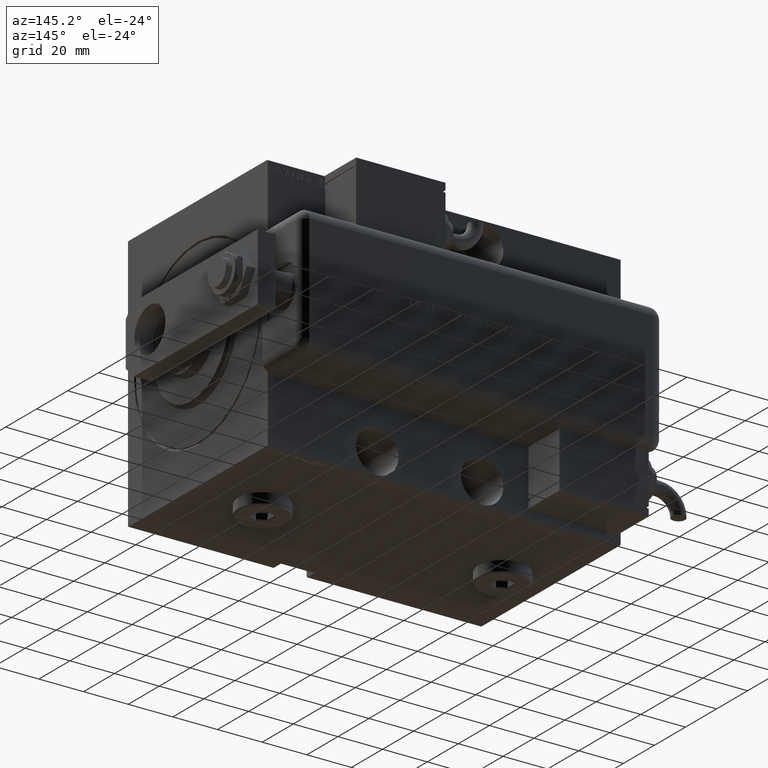
[diagram: clean part render]
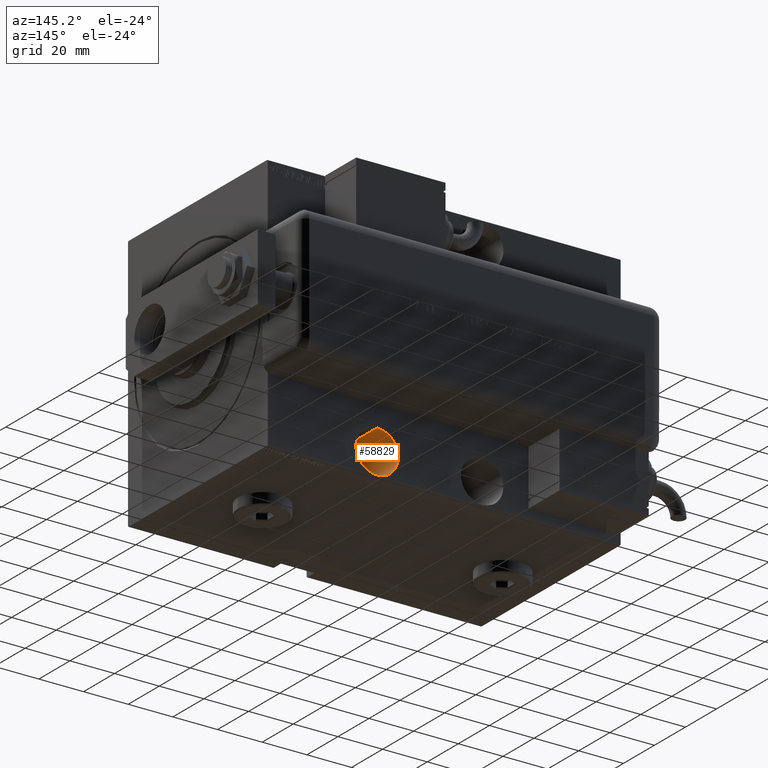
[diagram: same view with one face highlighted and labeled with its STEP entity id]
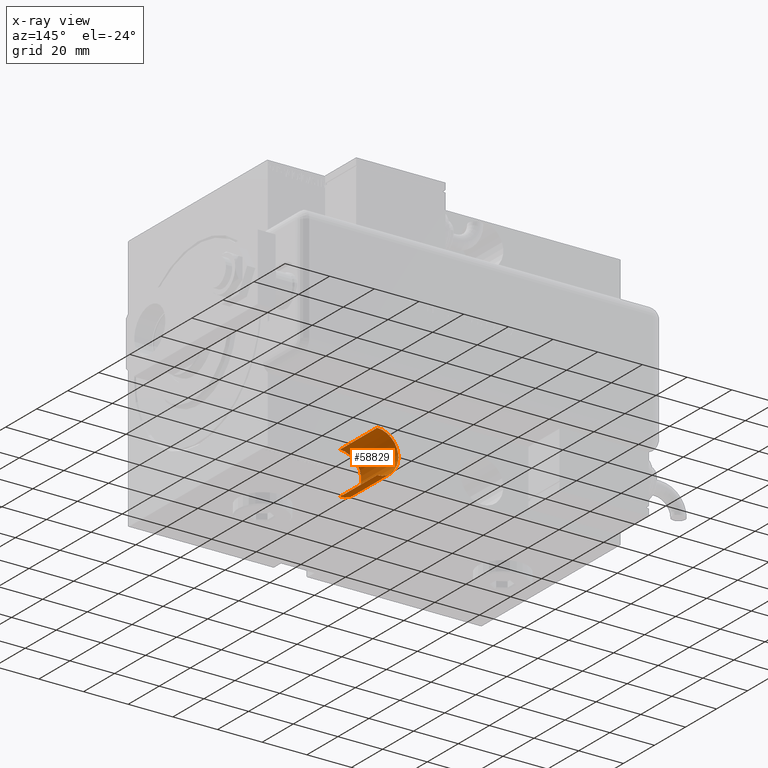
[diagram: x-ray of the same camera — body ghosted, the highlighted face saturated]
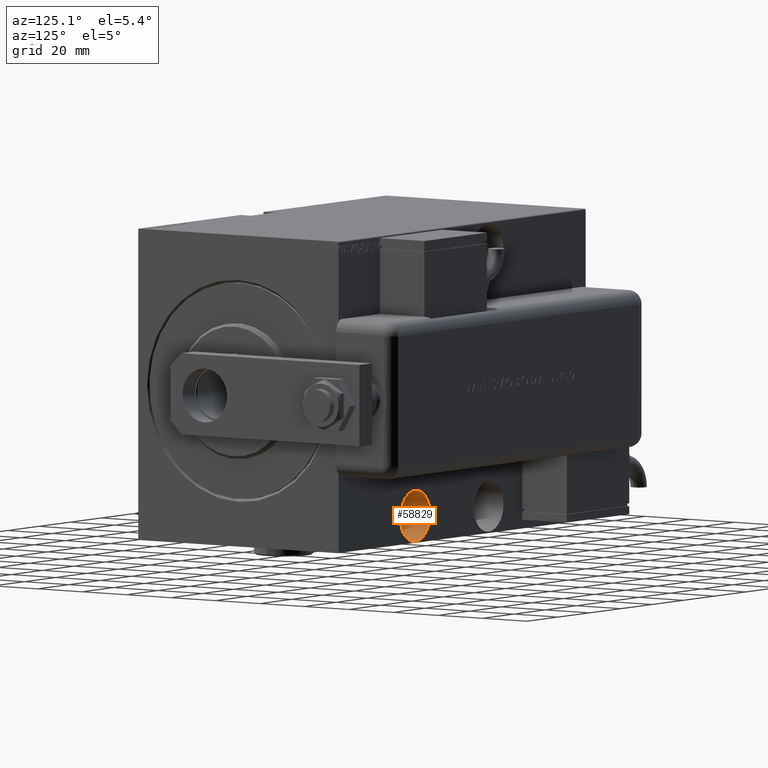
[diagram: same view with one face highlighted and labeled with its STEP entity id]
A machine part, auxiliary view. The second image highlights one B-rep face of the part: STEP entity #58829.
The next image is the same camera in x-ray: the body ghosted, the highlighted face saturated — about 3% of this face is hidden behind the body in this view.
A second angle (auxiliary view) of the same face is appended — the face is thin or edge-on in the first view.
In plain terms, the highlighted cylindrical surface (edge-blend (fillet) strip) has radius 9.5 mm, axis along (-0, 1, 0).
Its self-contained STEP definition (entity closure, byte-faithful):
#1721 = DIRECTION ( 'NONE',  ( -0.000000000000000000, -1.000000000000000000, -0.000000000000000000 ) ) ;
#4357 = CYLINDRICAL_SURFACE ( 'NONE', #7670, 9.500000000000001776 ) ;
#4650 = FACE_OUTER_BOUND ( 'NONE', #30254, .T. ) ;
#7670 = AXIS2_PLACEMENT_3D ( 'NONE', #22744, #13096, #45609 ) ;
#8562 = EDGE_CURVE ( 'NONE', #9914, #17513, #8971, .T. ) ;
#8971 = CIRCLE ( 'NONE', #15712, 9.500000000000001776 ) ;
#9914 = VERTEX_POINT ( 'NONE', #24298 ) ;
#10328 = EDGE_CURVE ( 'NONE', #17513, #33957, #54823, .T. ) ;
#13096 = DIRECTION ( 'NONE',  ( -0.000000000000000000, -1.000000000000000000, -0.000000000000000000 ) ) ;
#15298 = CARTESIAN_POINT ( 'NONE',  ( 48.99999999999997158, -20.99999999999999645, -56.99999999999997868 ) ) ;
#15712 = AXIS2_PLACEMENT_3D ( 'NONE', #16907, #55407, #22940 ) ;
#16907 = CARTESIAN_POINT ( 'NONE',  ( 48.99999999999997158, -20.99999999999999645, -47.49999999999997868 ) ) ;
#17152 = DIRECTION ( 'NONE',  ( 0.000000000000000000, -1.000000000000000000, 0.000000000000000000 ) ) ;
#17513 = VERTEX_POINT ( 'NONE', #39423 ) ;
#18108 = CARTESIAN_POINT ( 'NONE',  ( 48.99999999999997158, -20.99999999999999645, -37.99999999999997868 ) ) ;
#19888 = VECTOR ( 'NONE', #1721, 1000.000000000000000 ) ;
#20632 = EDGE_CURVE ( 'NONE', #9914, #52600, #52014, .T. ) ;
#22297 = ORIENTED_EDGE ( 'NONE', *, *, #23470, .T. ) ;
#22744 = CARTESIAN_POINT ( 'NONE',  ( 48.99999999999997158, -20.99999999999999645, -47.49999999999997868 ) ) ;
#22940 = DIRECTION ( 'NONE',  ( 0.000000000000000000, 0.000000000000000000, -1.000000000000000000 ) ) ;
#23223 = ORIENTED_EDGE ( 'NONE', *, *, #8562, .F. ) ;
#23470 = EDGE_CURVE ( 'NONE', #52600, #33957, #55536, .T. ) ;
#24298 = CARTESIAN_POINT ( 'NONE',  ( 48.99999999999997158, -20.99999999999999645, -56.99999999999997868 ) ) ;
#25774 = AXIS2_PLACEMENT_3D ( 'NONE', #43969, #17152, #49368 ) ;
#29219 = CARTESIAN_POINT ( 'NONE',  ( 48.99999999999997158, -45.00000000000000000, -37.99999999999997868 ) ) ;
#30254 = EDGE_LOOP ( 'NONE', ( #52002, #23223, #37327, #22297 ) ) ;
#33957 = VERTEX_POINT ( 'NONE', #29219 ) ;
#37327 = ORIENTED_EDGE ( 'NONE', *, *, #20632, .T. ) ;
#39423 = CARTESIAN_POINT ( 'NONE',  ( 48.99999999999997158, -20.99999999999999645, -37.99999999999997868 ) ) ;
#43969 = CARTESIAN_POINT ( 'NONE',  ( 48.99999999999997158, -45.00000000000000000, -47.49999999999997868 ) ) ;
#45609 = DIRECTION ( 'NONE',  ( 0.000000000000000000, 0.000000000000000000, -1.000000000000000000 ) ) ;
#49111 = DIRECTION ( 'NONE',  ( -0.000000000000000000, -1.000000000000000000, -0.000000000000000000 ) ) ;
#49368 = DIRECTION ( 'NONE',  ( 0.000000000000000000, 0.000000000000000000, -1.000000000000000000 ) ) ;
#49495 = CARTESIAN_POINT ( 'NONE',  ( 48.99999999999997158, -45.00000000000000000, -56.99999999999997868 ) ) ;
#52002 = ORIENTED_EDGE ( 'NONE', *, *, #10328, .F. ) ;
#52014 = LINE ( 'NONE', #15298, #19888 ) ;
#52600 = VERTEX_POINT ( 'NONE', #49495 ) ;
#54823 = LINE ( 'NONE', #18108, #59075 ) ;
#55407 = DIRECTION ( 'NONE',  ( 0.000000000000000000, -1.000000000000000000, 0.000000000000000000 ) ) ;
#55536 = CIRCLE ( 'NONE', #25774, 9.500000000000001776 ) ;
#58829 = ADVANCED_FACE ( 'NONE', ( #4650 ), #4357, .F. ) ;
#59075 = VECTOR ( 'NONE', #49111, 1000.000000000000000 ) ;